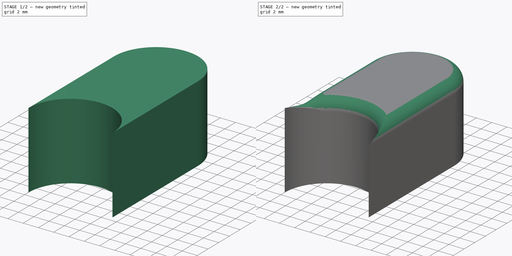
[diagram: build sequence overview — one tinted view per stage of 2, left to right]
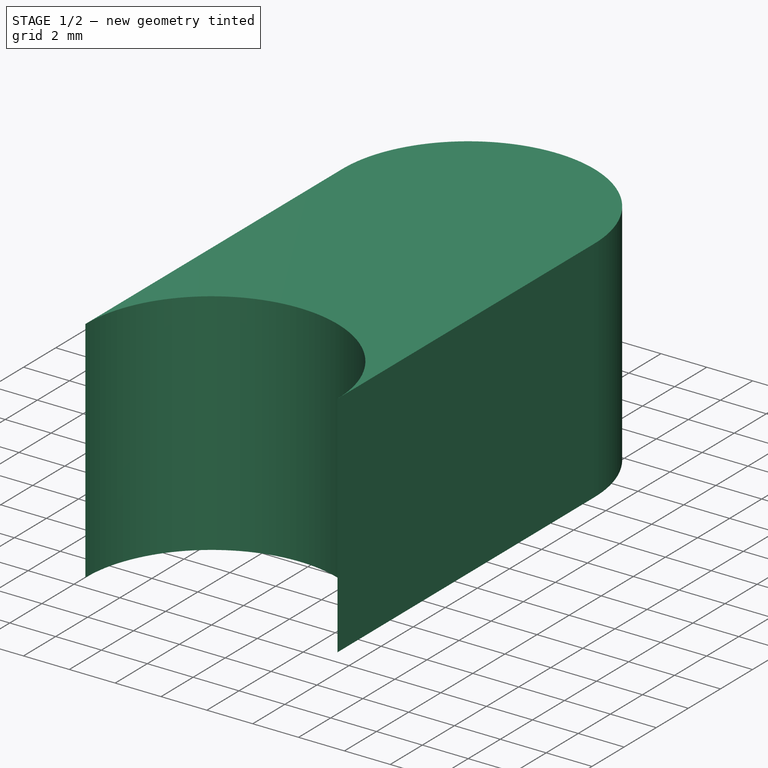
[diagram: stage 1 of 2 — iso view after this stage's code; geometry added in this stage tinted green]
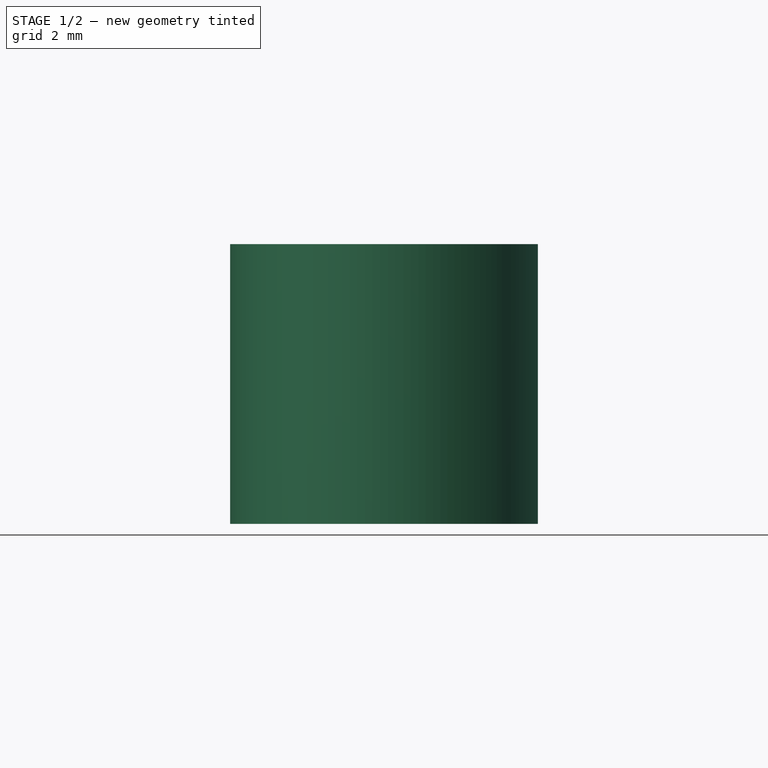
[diagram: stage 1 of 2 — front view after this stage's code; geometry added in this stage tinted green]
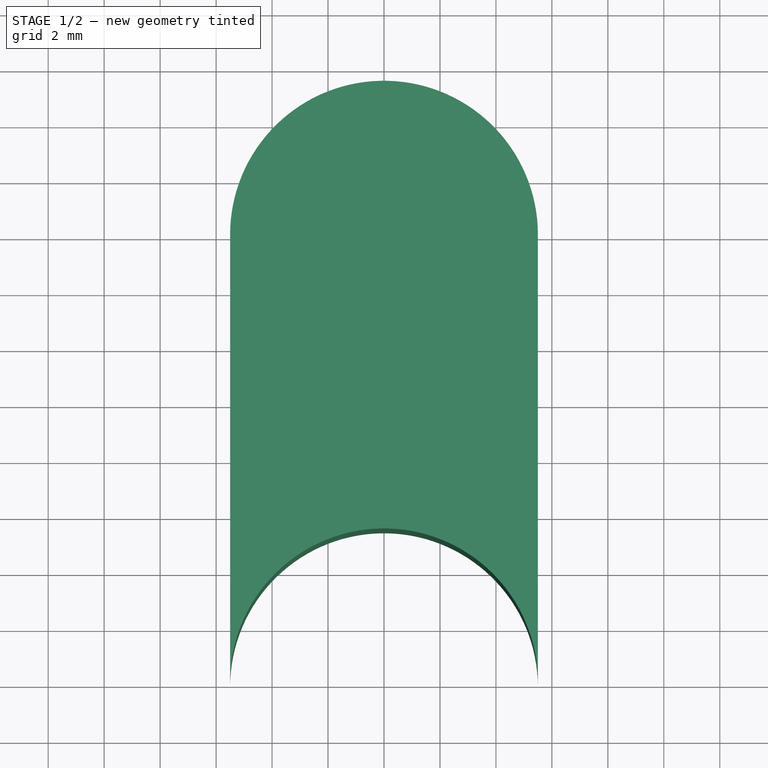
[diagram: stage 1 of 2 — top view after this stage's code; geometry added in this stage tinted green]
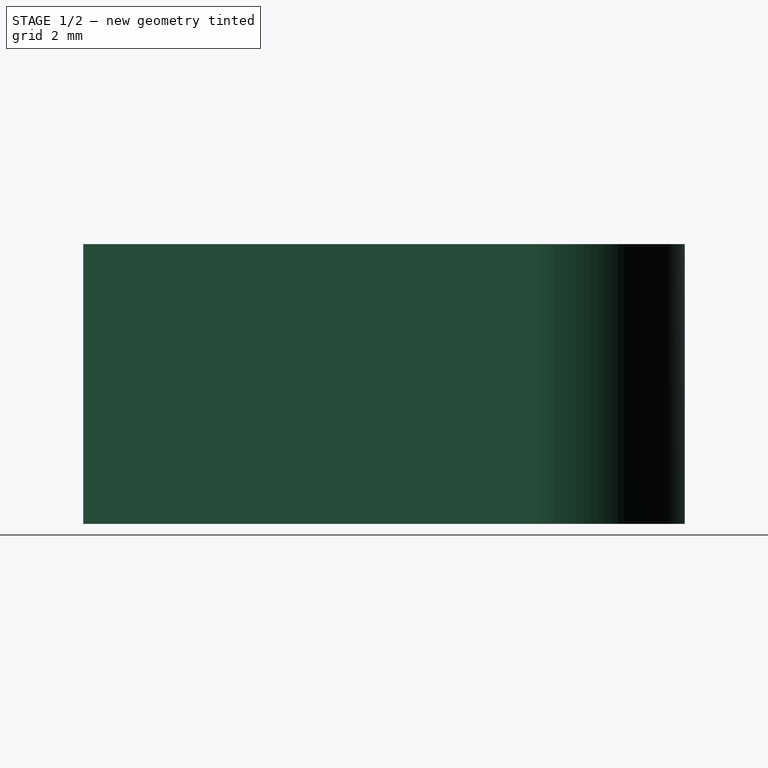
[diagram: stage 1 of 2 — right view after this stage's code; geometry added in this stage tinted green]
FCSTD DOCUMENT  (FreeCAD 1.0R39319 (Git))
Label: slot_hook_filler
License: All rights reserved
LicenseURL: https://en.wikipedia.org/wiki/All_rights_reserved
objects: Spreadsheet::Sheet×1, Sketcher::SketchObject×1, PartDesign::Pad×1, PartDesign::Fillet×1, PartDesign::Body×1
note: 9 computed .brp shape members not serialized (recipe doc carries the construction recipe); baked Part::Feature solids carry a one-line shape summary decoded from their .brp

FEATURE [Spreadsheet::Sheet] Spreadsheet
  cells = A1='Spacer width; B1(SpacerWidth)=11; C1='Hook height; D1(HookHeight)=16; A2='Spacer depth; B2(SpacerDepth)=10; A3='Spacer fillet; B3(SpacerFillet)=1.5
FEATURE [Sketcher::SketchObject] Sketch
  ArcFitTolerance = 1e-06
  AttachmentSupport = -> [XY_Plane]
  FullyConstrained = true
  MakeInternals = false
  MapMode = 5
  expr: Constraints[3] = Spreadsheet.SpacerWidth
  expr: Constraints[7] = Spreadsheet.HookHeight
  sketch-geometry (4):
    g0: ArcOfCircle CenterX=0 CenterY=0 CenterZ=0 NormalX=0 NormalY=0 NormalZ=1 AngleXU=0 Radius=5.5 StartAngle=0 EndAngle=3.14159
    g1: ArcOfCircle CenterX=0 CenterY=-16 CenterZ=0 NormalX=0 NormalY=0 NormalZ=1 AngleXU=0 Radius=5.5 StartAngle=0 EndAngle=3.1416
    g2: LineSegment StartX=-5.5 StartY=0 StartZ=0 EndX=-5.5 EndY=-16 EndZ=0
    g3: LineSegment StartX=5.5 StartY=0 StartZ=0 EndX=5.5 EndY=-16 EndZ=0
  constraints (12):
    c: Coincident(g0,g-1)
    c: PointOnObject(g0,g-1)
    c: PointOnObject(g0,g-1)
    c: DistanceX(g0,g0) = 11
    c: PointOnObject(g1,g-2)
    c: Vertical(g1,g0)
    c: Horizontal(g1,g1)
    c: DistanceY(g1,g0) = 16
    c: Coincident(g2,g0)
    c: Coincident(g2,g1)
    c: Tangent(g3,g0) = 1.5708
    c: Coincident(g3,g1)
FEATURE [PartDesign::Pad] Pad
  Direction = (0,0,1)
  Length = 10
  Length2 = 10
  Profile = -> Sketch
  ReferenceAxis = -> Sketch [N_Axis]
  Refine = true
  Suppressed = false
  Type = 0
  expr: Length = Spreadsheet.SpacerDepth
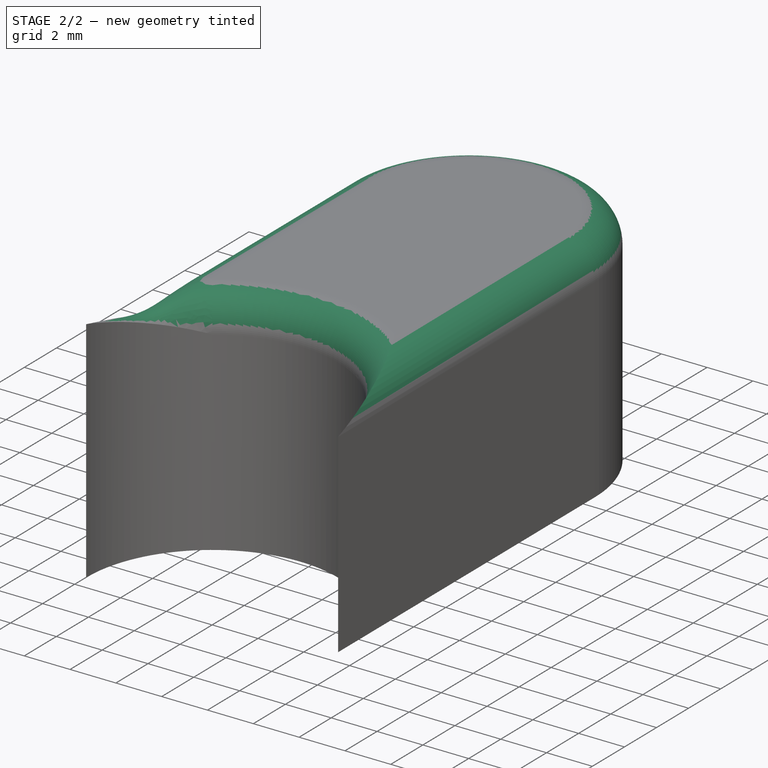
[diagram: stage 2 of 2 — iso view after this stage's code; geometry added in this stage tinted green]
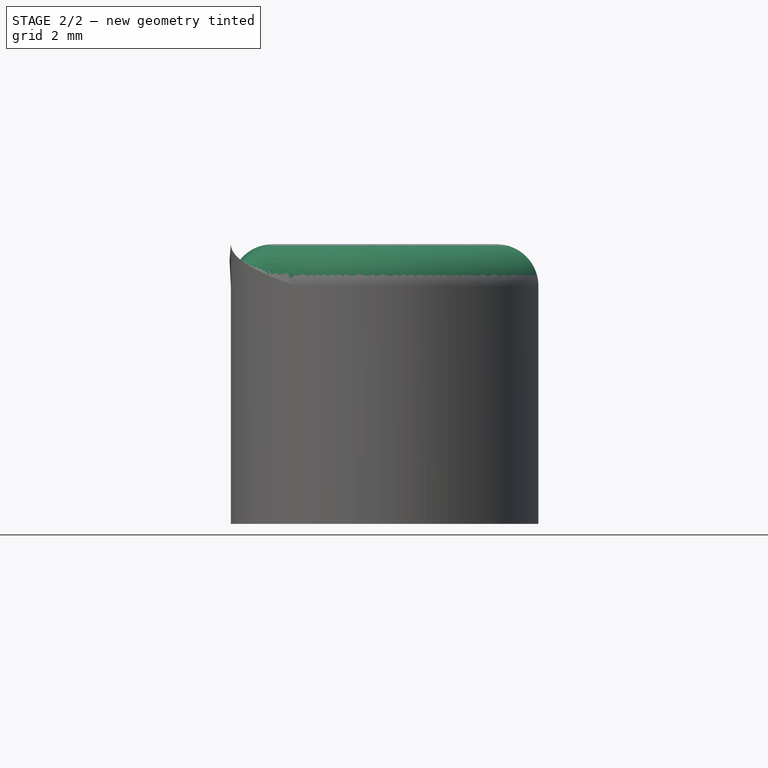
[diagram: stage 2 of 2 — front view after this stage's code; geometry added in this stage tinted green]
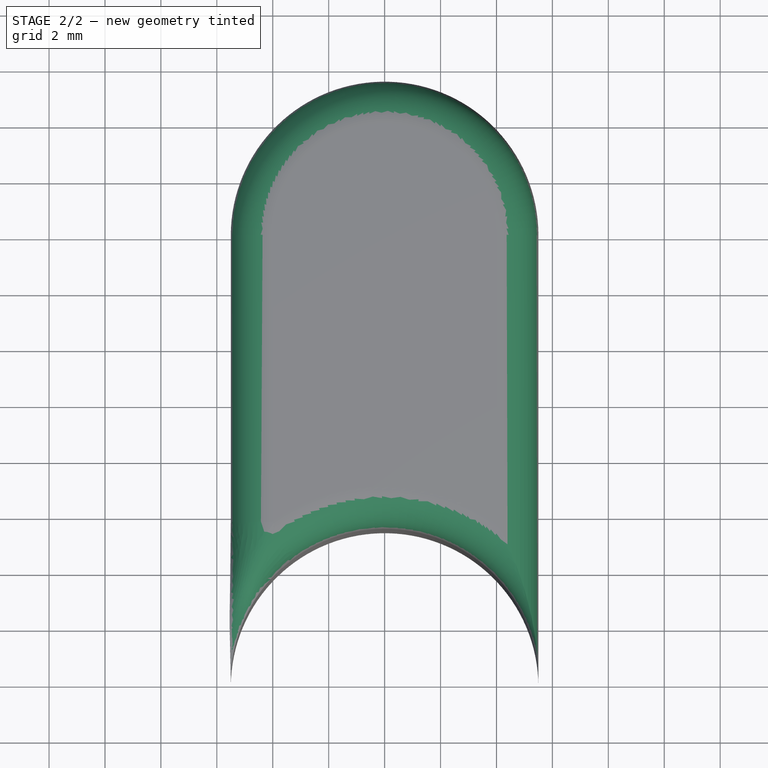
[diagram: stage 2 of 2 — top view after this stage's code; geometry added in this stage tinted green]
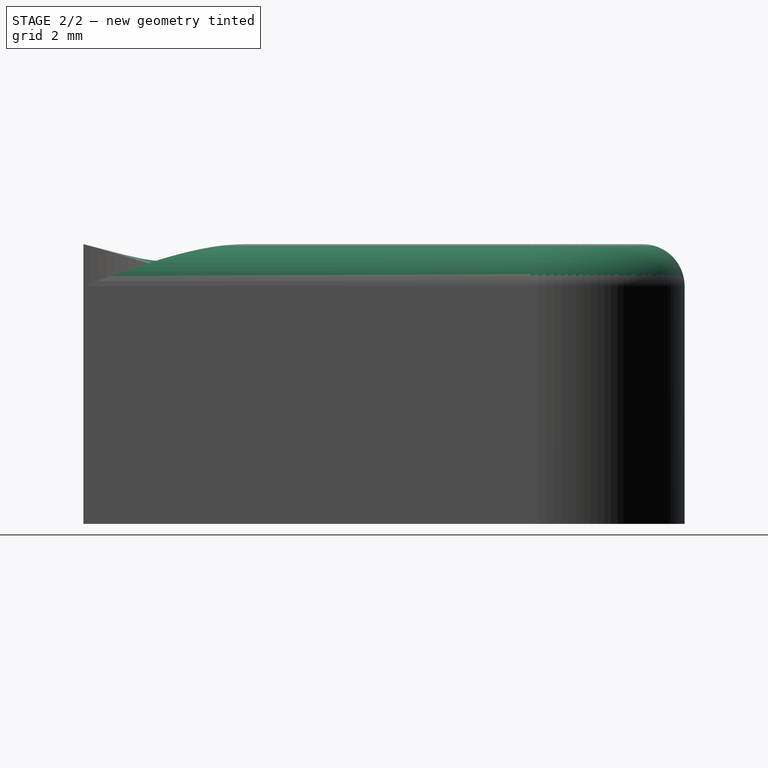
[diagram: stage 2 of 2 — right view after this stage's code; geometry added in this stage tinted green]
FEATURE [PartDesign::Fillet] Fillet
  Base = -> Pad [Edge10,Edge7]
  BaseFeature = -> Pad
  Radius = 1.5
  Refine = true
  SupportTransform = false
  Suppressed = false
  UseAllEdges = false
  expr: Radius = Spreadsheet.SpacerFillet
FEATURE [PartDesign::Body] Body
  AllowCompound = false
  Group = -> [Sketch,Pad,Fillet]
  Origin = -> Origin
  Tip = -> Fillet
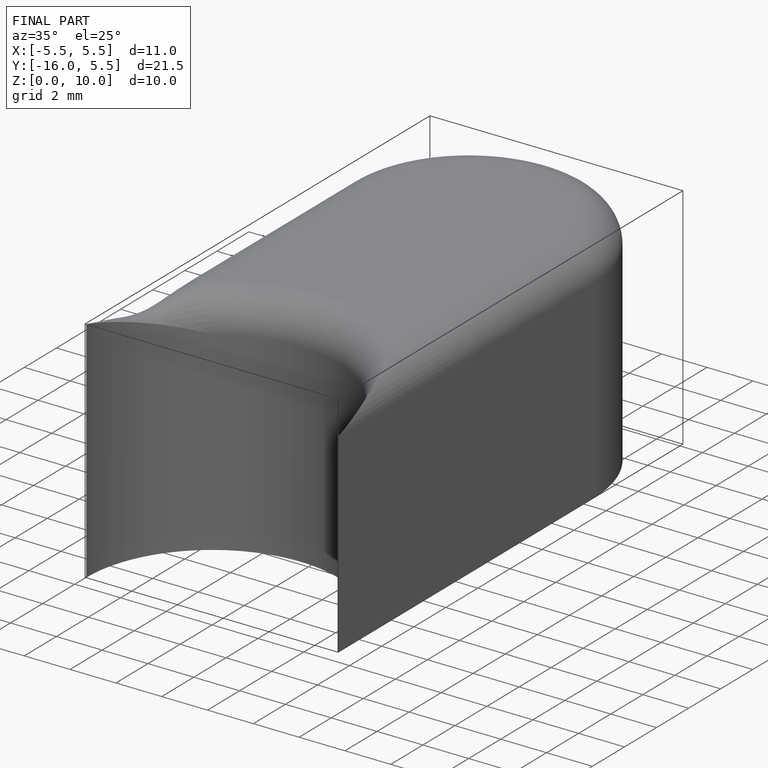
[diagram: finished part — iso view with bounding-box wireframe]
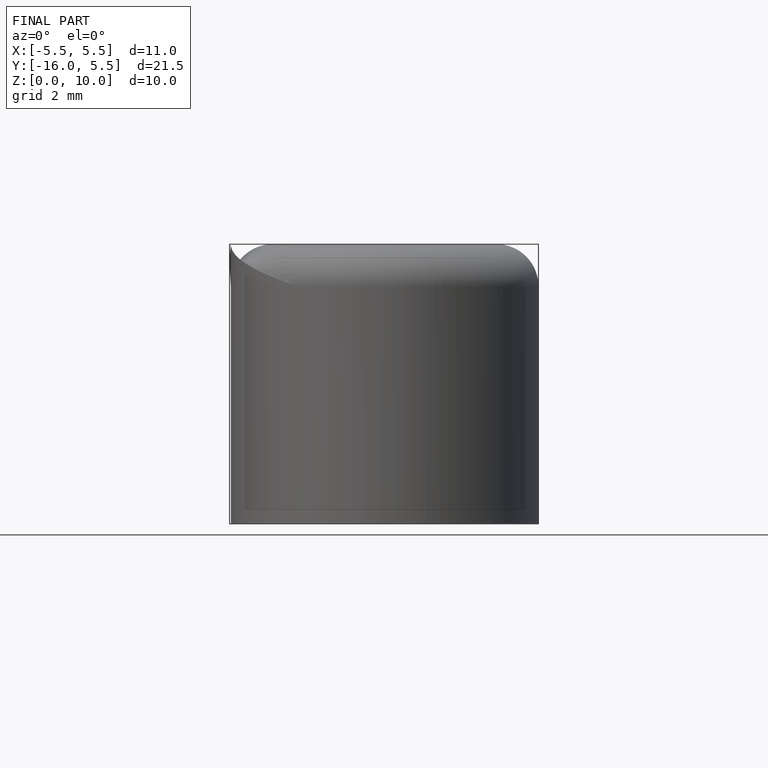
[diagram: finished part — front view with bounding-box wireframe]
